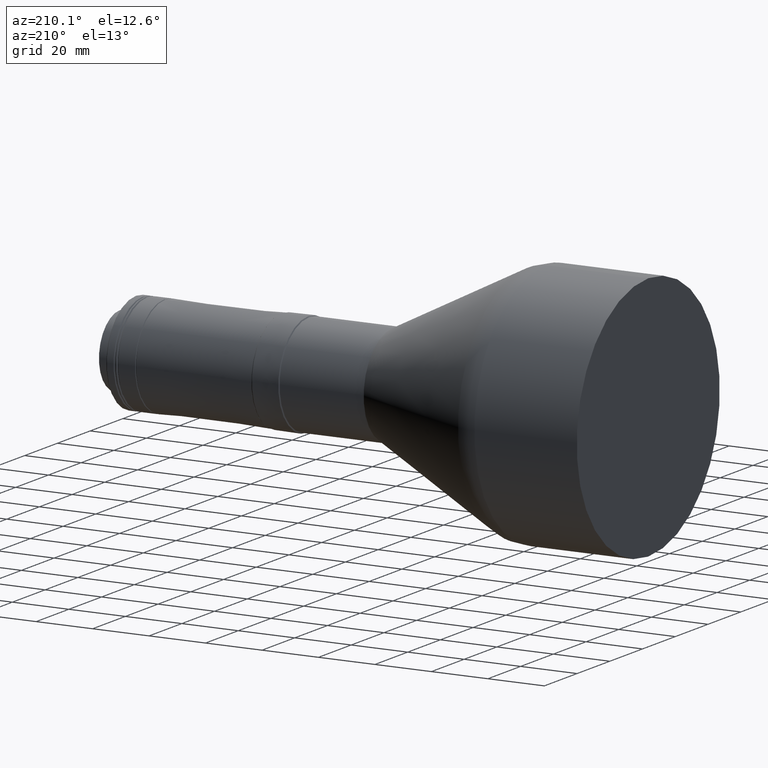
[diagram: clean part render]
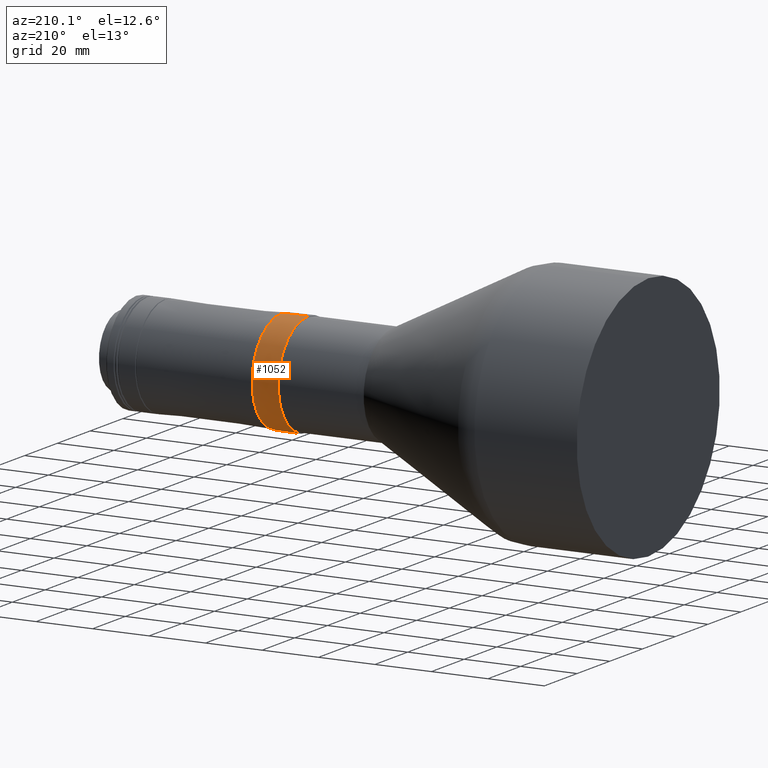
[diagram: same view with one face highlighted and labeled with its STEP entity id]
A machine part, auxiliary view. The second image highlights one B-rep face of the part: STEP entity #1052.
In plain terms, the highlighted conical surface has half-angle 0.808 deg.
Its self-contained STEP definition (entity closure, byte-faithful):
#37 = ORIENTED_EDGE ( 'NONE', *, *, #75, .F. ) ;
#75 = EDGE_CURVE ( 'NONE', #2291, #791, #860, .T. ) ;
#83 = CIRCLE ( 'NONE', #134, 18.30000000006137700 ) ;
#96 = DIRECTION ( 'NONE',  ( -1.000000000000000000, -0.0000000000000000000, -0.0000000000000000000 ) ) ;
#97 = DIRECTION ( 'NONE',  ( 0.0000000000000000000, 0.0000000000000000000, 1.000000000000000000 ) ) ;
#134 = AXIS2_PLACEMENT_3D ( 'NONE', #2278, #1545, #97 ) ;
#205 = CONICAL_SURFACE ( 'NONE', #1852, 18.30000000006137700, 0.01411034715137292700 ) ;
#224 = CARTESIAN_POINT ( 'NONE',  ( 105.7747024799359500, 0.0000000000000000000, -145.9436460666396200 ) ) ;
#295 = ORIENTED_EDGE ( 'NONE', *, *, #640, .T. ) ;
#384 = EDGE_CURVE ( 'NONE', #791, #2024, #83, .T. ) ;
#523 = AXIS2_PLACEMENT_3D ( 'NONE', #751, #1819, #940 ) ;
#551 = LINE ( 'NONE', #1235, #716 ) ;
#553 = VECTOR ( 'NONE', #695, 1000.000000000000200 ) ;
#640 = EDGE_CURVE ( 'NONE', #1732, #2024, #551, .T. ) ;
#695 = DIRECTION ( 'NONE',  ( -0.9999004507033547600, 0.0000000000000000000, 0.01410987892322064200 ) ) ;
#716 = VECTOR ( 'NONE', #1445, 1000.000000000000200 ) ;
#751 = CARTESIAN_POINT ( 'NONE',  ( 105.7747024799359500, 0.0000000000000000000, -164.1109999999999900 ) ) ;
#791 = VERTEX_POINT ( 'NONE', #2076 ) ;
#860 = LINE ( 'NONE', #1616, #553 ) ;
#865 = EDGE_LOOP ( 'NONE', ( #2198, #295, #2214, #37 ) ) ;
#940 = DIRECTION ( 'NONE',  ( 0.0000000000000000000, 0.0000000000000000000, 1.000000000000000000 ) ) ;
#1052 = ADVANCED_FACE ( 'NONE', ( #1661 ), #205, .T. ) ;
#1235 = CARTESIAN_POINT ( 'NONE',  ( 96.37470247992816000, 2.241103642447172200E-015, -182.4110000000613600 ) ) ;
#1397 = CARTESIAN_POINT ( 'NONE',  ( 105.7747024799359500, 2.224859184346682500E-015, -182.2783539333603400 ) ) ;
#1445 = DIRECTION ( 'NONE',  ( -0.9999004507033547600, 1.727961805967886200E-018, -0.01410987892322064200 ) ) ;
#1458 = CIRCLE ( 'NONE', #523, 18.16735393336036000 ) ;
#1545 = DIRECTION ( 'NONE',  ( -1.000000000000000000, -0.0000000000000000000, -0.0000000000000000000 ) ) ;
#1608 = CARTESIAN_POINT ( 'NONE',  ( 96.37470247992816000, 2.241103642447172200E-015, -182.4110000000613600 ) ) ;
#1616 = CARTESIAN_POINT ( 'NONE',  ( 96.37470247992816000, 0.0000000000000000000, -145.8109999999385900 ) ) ;
#1661 = FACE_OUTER_BOUND ( 'NONE', #865, .T. ) ;
#1723 = DIRECTION ( 'NONE',  ( 0.0000000000000000000, 0.0000000000000000000, 1.000000000000000000 ) ) ;
#1730 = CARTESIAN_POINT ( 'NONE',  ( 96.37470247992816000, 0.0000000000000000000, -164.1109999999999900 ) ) ;
#1732 = VERTEX_POINT ( 'NONE', #1397 ) ;
#1819 = DIRECTION ( 'NONE',  ( -1.000000000000000000, -0.0000000000000000000, -0.0000000000000000000 ) ) ;
#1852 = AXIS2_PLACEMENT_3D ( 'NONE', #1730, #96, #1723 ) ;
#2024 = VERTEX_POINT ( 'NONE', #1608 ) ;
#2076 = CARTESIAN_POINT ( 'NONE',  ( 96.37470247992816000, 0.0000000000000000000, -145.8109999999385900 ) ) ;
#2182 = EDGE_CURVE ( 'NONE', #2291, #1732, #1458, .T. ) ;
#2198 = ORIENTED_EDGE ( 'NONE', *, *, #2182, .T. ) ;
#2214 = ORIENTED_EDGE ( 'NONE', *, *, #384, .F. ) ;
#2278 = CARTESIAN_POINT ( 'NONE',  ( 96.37470247992816000, 0.0000000000000000000, -164.1109999999999900 ) ) ;
#2291 = VERTEX_POINT ( 'NONE', #224 ) ;